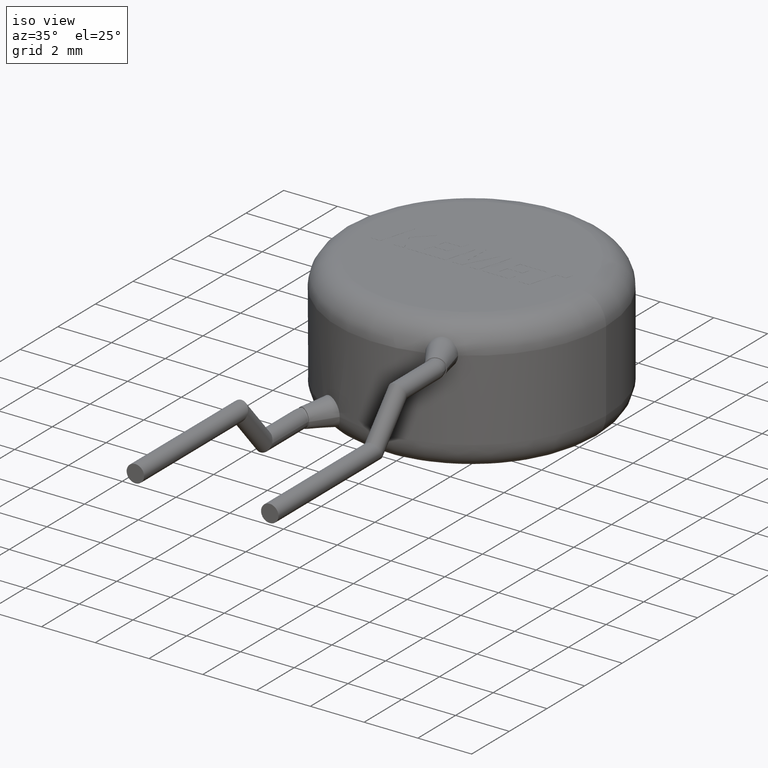
[diagram: clean part render]
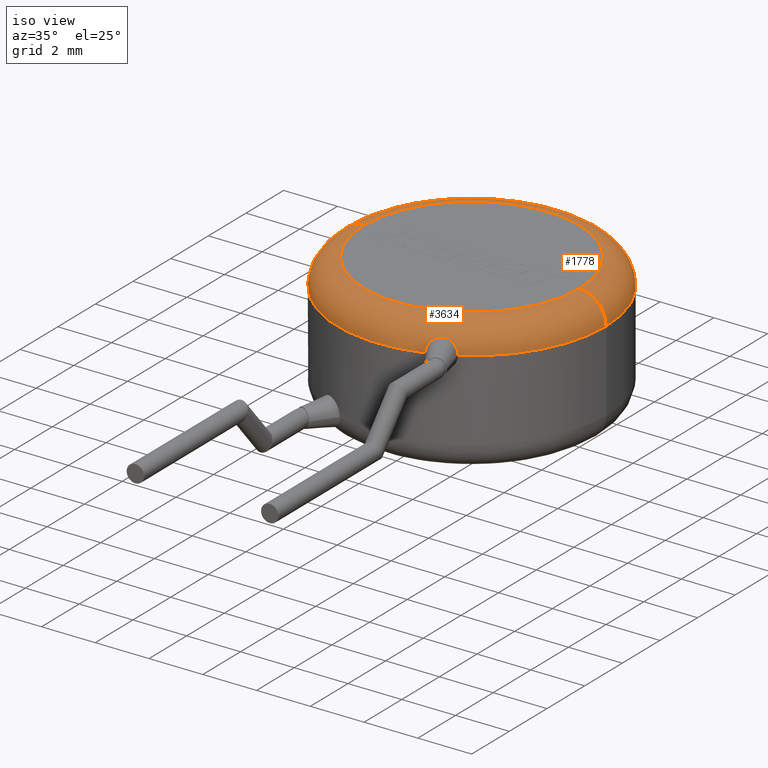
[diagram: same view with one multi-face feature highlighted, each face labeled with its STEP entity id]
A machine part, iso view. The highlighted faces form ONE feature: a constant-radius fillet chain: 2 tangent blend faces with common blend radius 1 mm. The faces share edges in the B-rep.
Their STEP definitions:
[1] entity #3634 (Torus):
#27 = CARTESIAN_POINT ( 'NONE',  ( 4.000000000000000000, 0.0000000000000000000, 4.000000000000000000 ) ) ;
#94 = AXIS2_PLACEMENT_3D ( 'NONE', #1421, #3721, #2376 ) ;
#179 = VERTEX_POINT ( 'NONE', #2300 ) ;
#200 = CARTESIAN_POINT ( 'NONE',  ( 2.063863348791088500, -4.389226268731275300, 4.527168989043866000 ) ) ;
#214 = CARTESIAN_POINT ( 'NONE',  ( 2.129702350834501900, -4.368174514065956700, 4.512440460137227700 ) ) ;
#272 = VERTEX_POINT ( 'NONE', #4229 ) ;
#298 = DIRECTION ( 'NONE',  ( -0.0000000000000000000, -0.0000000000000000000, -1.000000000000000000 ) ) ;
#379 = VERTEX_POINT ( 'NONE', #3554 ) ;
#455 = CIRCLE ( 'NONE', #2729, 1.000000000000000000 ) ;
#591 = ORIENTED_EDGE ( 'NONE', *, *, #3019, .F. ) ;
#629 = CARTESIAN_POINT ( 'NONE',  ( 0.0000000000000000000, 0.0000000000000000000, 5.000000000000000000 ) ) ;
#658 = EDGE_CURVE ( 'NONE', #272, #2084, #455, .T. ) ;
#830 = DIRECTION ( 'NONE',  ( -1.000000000000000000, 1.224646799147353500E-016, 0.0000000000000000000 ) ) ;
#834 = CARTESIAN_POINT ( 'NONE',  ( 1.736110225750948600, -4.593314926015419400, 4.417280681464410100 ) ) ;
#848 = CARTESIAN_POINT ( 'NONE',  ( 2.310605399698379500, -4.332640610976761200, 4.417723649475902900 ) ) ;
#869 = DIRECTION ( 'NONE',  ( 0.0000000000000000000, -1.000000000000000000, 0.0000000000000000000 ) ) ;
#878 = CARTESIAN_POINT ( 'NONE',  ( 1.592110357671504300, -4.739745205071166400, 4.138498089619504900 ) ) ;
#894 = CARTESIAN_POINT ( 'NONE',  ( 2.455506372283536600, -4.319276826948904400, 4.272811750088513900 ) ) ;
#925 = DIRECTION ( 'NONE',  ( 1.000000000000000000, 0.0000000000000000000, 0.0000000000000000000 ) ) ;
#988 = TOROIDAL_SURFACE ( 'NONE', #1209, 4.000000000000000000, 1.000000000000000000 ) ;
#1174 = CIRCLE ( 'NONE', #2236, 5.000000000000000000 ) ;
#1209 = AXIS2_PLACEMENT_3D ( 'NONE', #3432, #3821, #2043 ) ;
#1288 = ORIENTED_EDGE ( 'NONE', *, *, #658, .F. ) ;
#1290 = EDGE_CURVE ( 'NONE', #179, #1896, #1669, .T. ) ;
#1421 = CARTESIAN_POINT ( 'NONE',  ( 0.0000000000000000000, 0.0000000000000000000, 4.000000000000000000 ) ) ;
#1488 = EDGE_CURVE ( 'NONE', #2569, #1896, #1174, .T. ) ;
#1495 = CARTESIAN_POINT ( 'NONE',  ( 1.939561603057209600, -4.445780552416332300, 4.526832357248899500 ) ) ;
#1669 = B_SPLINE_CURVE_WITH_KNOTS ( 'NONE', 3,
 ( #3826, #878, #2502, #834, #2823, #2484, #1495, #200, #214, #2114, #848, #894, #1859, #1844 ),
 .UNSPECIFIED., .F., .F.,
 ( 4, 2, 2, 2, 2, 2, 4 ),
 ( 1.970845970685843000E-007, 0.0004096489131377615100, 0.0006143748274081088200, 0.0008191007416784560800, 0.001023826655948804900, 0.001228552570219153100, 0.001638004398759851100 ),
 .UNSPECIFIED. ) ;
#1732 = EDGE_LOOP ( 'NONE', ( #1288, #2031, #2074, #2507, #4161, #591 ) ) ;
#1771 = CARTESIAN_POINT ( 'NONE',  ( -4.000000000000000000, 5.510910596163088600E-016, 5.000000000000000000 ) ) ;
#1806 = CARTESIAN_POINT ( 'NONE',  ( -4.000000000000000000, 4.898587196589412800E-016, 4.000000000000000000 ) ) ;
#1844 = CARTESIAN_POINT ( 'NONE',  ( 2.516174330990837800, -4.320748399995400400, 4.000000000000000000 ) ) ;
#1859 = CARTESIAN_POINT ( 'NONE',  ( 2.516174330997469800, -4.320748399995347100, 4.138630589885899300 ) ) ;
#1896 = VERTEX_POINT ( 'NONE', #2022 ) ;
#2022 = CARTESIAN_POINT ( 'NONE',  ( 2.516174330990837800, -4.320748399995400400, 4.000000000000000000 ) ) ;
#2031 = ORIENTED_EDGE ( 'NONE', *, *, #2107, .F. ) ;
#2043 = DIRECTION ( 'NONE',  ( 1.000000000000000000, 0.0000000000000000000, 0.0000000000000000000 ) ) ;
#2074 = ORIENTED_EDGE ( 'NONE', *, *, #1290, .T. ) ;
#2084 = VERTEX_POINT ( 'NONE', #1771 ) ;
#2107 = EDGE_CURVE ( 'NONE', #179, #272, #3675, .T. ) ;
#2114 = CARTESIAN_POINT ( 'NONE',  ( 2.253389775444309100, -4.340097255362334900, 4.457380023853442500 ) ) ;
#2139 = CIRCLE ( 'NONE', #2355, 1.000000000000000000 ) ;
#2236 = AXIS2_PLACEMENT_3D ( 'NONE', #4160, #298, #925 ) ;
#2300 = CARTESIAN_POINT ( 'NONE',  ( 1.592110357671505400, -4.739745205071165500, 3.999999999999994700 ) ) ;
#2355 = AXIS2_PLACEMENT_3D ( 'NONE', #27, #869, #2763 ) ;
#2376 = DIRECTION ( 'NONE',  ( 1.000000000000000000, 0.0000000000000000000, 0.0000000000000000000 ) ) ;
#2484 = CARTESIAN_POINT ( 'NONE',  ( 1.880511726837580800, -4.481603367880199900, 4.511619733281506200 ) ) ;
#2502 = CARTESIAN_POINT ( 'NONE',  ( 1.630920379916634100, -4.693230645907854100, 4.272514737752072000 ) ) ;
#2507 = ORIENTED_EDGE ( 'NONE', *, *, #1488, .F. ) ;
#2569 = VERTEX_POINT ( 'NONE', #3068 ) ;
#2729 = AXIS2_PLACEMENT_3D ( 'NONE', #1806, #3788, #830 ) ;
#2763 = DIRECTION ( 'NONE',  ( 0.0000000000000000000, 0.0000000000000000000, -1.000000000000000000 ) ) ;
#2768 = FACE_OUTER_BOUND ( 'NONE', #1732, .T. ) ;
#2823 = CARTESIAN_POINT ( 'NONE',  ( 1.779688959720993100, -4.555012521875194200, 4.457089787076919100 ) ) ;
#3019 = EDGE_CURVE ( 'NONE', #2084, #379, #3095, .T. ) ;
#3068 = CARTESIAN_POINT ( 'NONE',  ( 5.000000000000000000, 6.123233995736766300E-016, 4.000000000000000000 ) ) ;
#3095 = CIRCLE ( 'NONE', #3965, 4.000000000000000000 ) ;
#3259 = DIRECTION ( 'NONE',  ( 1.000000000000000000, 0.0000000000000000000, 0.0000000000000000000 ) ) ;
#3432 = CARTESIAN_POINT ( 'NONE',  ( 0.0000000000000000000, 0.0000000000000000000, 4.000000000000000000 ) ) ;
#3554 = CARTESIAN_POINT ( 'NONE',  ( 4.000000000000000000, 0.0000000000000000000, 5.000000000000000000 ) ) ;
#3634 = ADVANCED_FACE ( 'NONE', ( #2768 ), #988, .T. ) ;
#3675 = CIRCLE ( 'NONE', #94, 5.000000000000000000 ) ;
#3721 = DIRECTION ( 'NONE',  ( -0.0000000000000000000, -0.0000000000000000000, -1.000000000000000000 ) ) ;
#3735 = EDGE_CURVE ( 'NONE', #2569, #379, #2139, .T. ) ;
#3788 = DIRECTION ( 'NONE',  ( 1.224646799147353200E-016, 1.000000000000000000, -0.0000000000000000000 ) ) ;
#3821 = DIRECTION ( 'NONE',  ( 0.0000000000000000000, 0.0000000000000000000, 1.000000000000000000 ) ) ;
#3826 = CARTESIAN_POINT ( 'NONE',  ( 1.592110357671505400, -4.739745205071165500, 3.999999999999994700 ) ) ;
#3893 = DIRECTION ( 'NONE',  ( 0.0000000000000000000, 0.0000000000000000000, 1.000000000000000000 ) ) ;
#3965 = AXIS2_PLACEMENT_3D ( 'NONE', #629, #3893, #3259 ) ;
#4160 = CARTESIAN_POINT ( 'NONE',  ( 0.0000000000000000000, 0.0000000000000000000, 4.000000000000000000 ) ) ;
#4161 = ORIENTED_EDGE ( 'NONE', *, *, #3735, .T. ) ;
#4229 = CARTESIAN_POINT ( 'NONE',  ( -5.000000000000000000, 0.0000000000000000000, 4.000000000000000000 ) ) ;
[2] entity #1778 (Torus):
#27 = CARTESIAN_POINT ( 'NONE',  ( 4.000000000000000000, 0.0000000000000000000, 4.000000000000000000 ) ) ;
#272 = VERTEX_POINT ( 'NONE', #4229 ) ;
#379 = VERTEX_POINT ( 'NONE', #3554 ) ;
#439 = CARTESIAN_POINT ( 'NONE',  ( 0.0000000000000000000, 0.0000000000000000000, 4.000000000000000000 ) ) ;
#451 = FACE_OUTER_BOUND ( 'NONE', #3013, .T. ) ;
#455 = CIRCLE ( 'NONE', #2729, 1.000000000000000000 ) ;
#658 = EDGE_CURVE ( 'NONE', #272, #2084, #455, .T. ) ;
#830 = DIRECTION ( 'NONE',  ( -1.000000000000000000, 1.224646799147353500E-016, 0.0000000000000000000 ) ) ;
#846 = ORIENTED_EDGE ( 'NONE', *, *, #3735, .F. ) ;
#856 = DIRECTION ( 'NONE',  ( 0.0000000000000000000, 0.0000000000000000000, 1.000000000000000000 ) ) ;
#869 = DIRECTION ( 'NONE',  ( 0.0000000000000000000, -1.000000000000000000, 0.0000000000000000000 ) ) ;
#951 = CARTESIAN_POINT ( 'NONE',  ( 0.0000000000000000000, 0.0000000000000000000, 5.000000000000000000 ) ) ;
#1628 = AXIS2_PLACEMENT_3D ( 'NONE', #439, #2337, #3008 ) ;
#1655 = AXIS2_PLACEMENT_3D ( 'NONE', #951, #3243, #2953 ) ;
#1771 = CARTESIAN_POINT ( 'NONE',  ( -4.000000000000000000, 5.510910596163088600E-016, 5.000000000000000000 ) ) ;
#1778 = ADVANCED_FACE ( 'NONE', ( #451 ), #3352, .T. ) ;
#1790 = CARTESIAN_POINT ( 'NONE',  ( 0.0000000000000000000, 0.0000000000000000000, 4.000000000000000000 ) ) ;
#1806 = CARTESIAN_POINT ( 'NONE',  ( -4.000000000000000000, 4.898587196589412800E-016, 4.000000000000000000 ) ) ;
#1926 = ORIENTED_EDGE ( 'NONE', *, *, #3340, .F. ) ;
#2072 = CIRCLE ( 'NONE', #1655, 4.000000000000000000 ) ;
#2084 = VERTEX_POINT ( 'NONE', #1771 ) ;
#2139 = CIRCLE ( 'NONE', #2355, 1.000000000000000000 ) ;
#2337 = DIRECTION ( 'NONE',  ( -0.0000000000000000000, -0.0000000000000000000, -1.000000000000000000 ) ) ;
#2355 = AXIS2_PLACEMENT_3D ( 'NONE', #27, #869, #2763 ) ;
#2406 = AXIS2_PLACEMENT_3D ( 'NONE', #1790, #856, #3722 ) ;
#2453 = CIRCLE ( 'NONE', #1628, 5.000000000000000000 ) ;
#2569 = VERTEX_POINT ( 'NONE', #3068 ) ;
#2729 = AXIS2_PLACEMENT_3D ( 'NONE', #1806, #3788, #830 ) ;
#2763 = DIRECTION ( 'NONE',  ( 0.0000000000000000000, 0.0000000000000000000, -1.000000000000000000 ) ) ;
#2953 = DIRECTION ( 'NONE',  ( 1.000000000000000000, 0.0000000000000000000, 0.0000000000000000000 ) ) ;
#3008 = DIRECTION ( 'NONE',  ( 1.000000000000000000, 0.0000000000000000000, 0.0000000000000000000 ) ) ;
#3013 = EDGE_LOOP ( 'NONE', ( #3949, #3231, #1926, #846 ) ) ;
#3068 = CARTESIAN_POINT ( 'NONE',  ( 5.000000000000000000, 6.123233995736766300E-016, 4.000000000000000000 ) ) ;
#3231 = ORIENTED_EDGE ( 'NONE', *, *, #658, .T. ) ;
#3243 = DIRECTION ( 'NONE',  ( 0.0000000000000000000, 0.0000000000000000000, 1.000000000000000000 ) ) ;
#3340 = EDGE_CURVE ( 'NONE', #379, #2084, #2072, .T. ) ;
#3352 = TOROIDAL_SURFACE ( 'NONE', #2406, 4.000000000000000000, 1.000000000000000000 ) ;
#3554 = CARTESIAN_POINT ( 'NONE',  ( 4.000000000000000000, 0.0000000000000000000, 5.000000000000000000 ) ) ;
#3722 = DIRECTION ( 'NONE',  ( 1.000000000000000000, 0.0000000000000000000, 0.0000000000000000000 ) ) ;
#3735 = EDGE_CURVE ( 'NONE', #2569, #379, #2139, .T. ) ;
#3788 = DIRECTION ( 'NONE',  ( 1.224646799147353200E-016, 1.000000000000000000, -0.0000000000000000000 ) ) ;
#3890 = EDGE_CURVE ( 'NONE', #272, #2569, #2453, .T. ) ;
#3949 = ORIENTED_EDGE ( 'NONE', *, *, #3890, .F. ) ;
#4229 = CARTESIAN_POINT ( 'NONE',  ( -5.000000000000000000, 0.0000000000000000000, 4.000000000000000000 ) ) ;